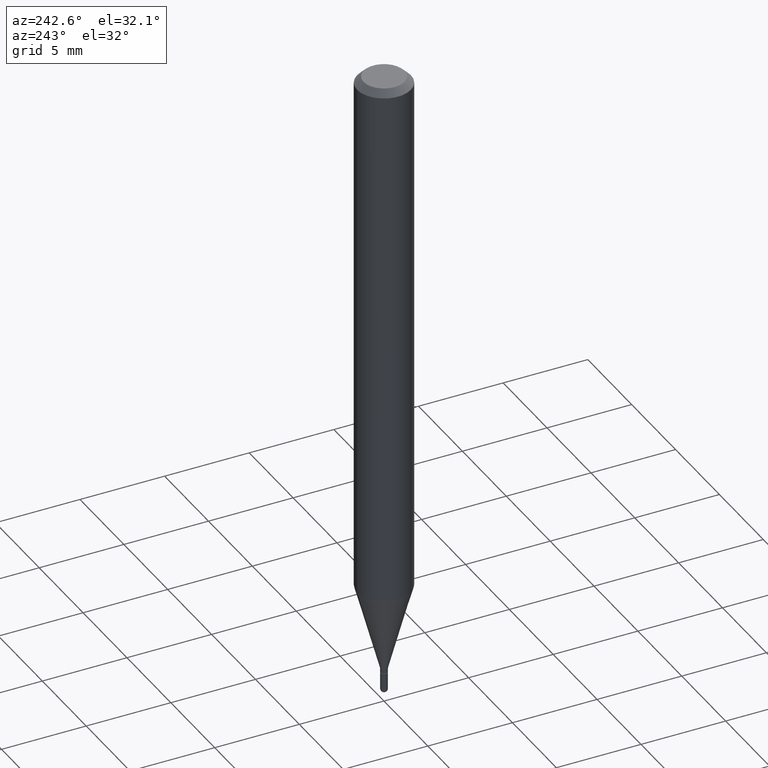
[diagram: clean part render]
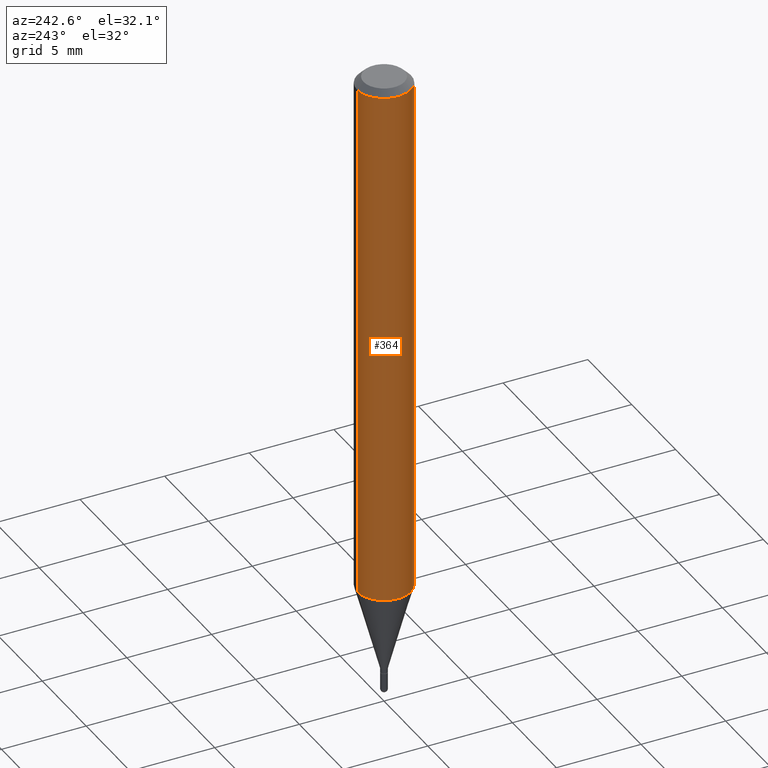
[diagram: same view with one face highlighted and labeled with its STEP entity id]
A machine part, auxiliary view. The second image highlights one B-rep face of the part: STEP entity #364.
In plain terms, the highlighted cylindrical surface (edge-blend (fillet) strip) has radius 1.5875 mm, axis along (-0, 0, 1).
Its self-contained STEP definition (entity closure, byte-faithful):
#8 = VERTEX_POINT ( 'NONE', #371 ) ;
#11 = ORIENTED_EDGE ( 'NONE', *, *, #93, .F. ) ;
#21 = AXIS2_PLACEMENT_3D ( 'NONE', #84, #236, #200 ) ;
#32 = DIRECTION ( 'NONE',  ( -2.445458081085281379E-29, 3.491496697796572887E-15, 1.000000000000000000 ) ) ;
#37 = CARTESIAN_POINT ( 'NONE',  ( 4.440892098500930859E-16, 0.06249999999999995143, -0.01499999999999997863 ) ) ;
#69 = VERTEX_POINT ( 'NONE', #37 ) ;
#78 = CARTESIAN_POINT ( 'NONE',  ( -4.364351673553916201E-16, -0.06250000000000000000, 2.182185436122858054E-16 ) ) ;
#81 = EDGE_CURVE ( 'NONE', #227, #190, #270, .T. ) ;
#84 = CARTESIAN_POINT ( 'NONE',  ( 3.028952280476713504E-29, -4.324579090873010199E-15, -1.238603230987496584 ) ) ;
#93 = EDGE_CURVE ( 'NONE', #69, #190, #378, .T. ) ;
#110 = ORIENTED_EDGE ( 'NONE', *, *, #81, .T. ) ;
#120 = AXIS2_PLACEMENT_3D ( 'NONE', #511, #133, #286 ) ;
#127 = VECTOR ( 'NONE', #214, 39.37007874015748143 ) ;
#133 = DIRECTION ( 'NONE',  ( -2.445458081085281379E-29, 3.491496697796572887E-15, 1.000000000000000000 ) ) ;
#158 = DIRECTION ( 'NONE',  ( -6.982962677686265922E-15, -1.000000000000000000, 3.483106191921935554E-15 ) ) ;
#177 = EDGE_CURVE ( 'NONE', #8, #69, #240, .T. ) ;
#190 = VERTEX_POINT ( 'NONE', #393 ) ;
#199 = EDGE_LOOP ( 'NONE', ( #268, #488, #110, #11 ) ) ;
#200 = DIRECTION ( 'NONE',  ( -6.982962677686265922E-15, -1.000000000000000000, 4.370956789862821150E-15 ) ) ;
#214 = DIRECTION ( 'NONE',  ( -2.445458081085281379E-29, 3.491496697796572887E-15, 1.000000000000000000 ) ) ;
#227 = VERTEX_POINT ( 'NONE', #345 ) ;
#236 = DIRECTION ( 'NONE',  ( -2.445458081085281379E-29, 3.491496697796572887E-15, 1.000000000000000000 ) ) ;
#240 = LINE ( 'NONE', #325, #127 ) ;
#244 = CIRCLE ( 'NONE', #21, 0.06250000000000000000 ) ;
#268 = ORIENTED_EDGE ( 'NONE', *, *, #177, .F. ) ;
#270 = LINE ( 'NONE', #78, #346 ) ;
#272 = FACE_OUTER_BOUND ( 'NONE', #199, .T. ) ;
#278 = AXIS2_PLACEMENT_3D ( 'NONE', #281, #503, #158 ) ;
#281 = CARTESIAN_POINT ( 'NONE',  ( 3.668187121627863477E-31, -5.237245046694775835E-17, -0.01499999999999976179 ) ) ;
#286 = DIRECTION ( 'NONE',  ( -6.982962677686265922E-15, -1.000000000000000000, 3.491496697796572887E-15 ) ) ;
#325 = CARTESIAN_POINT ( 'NONE',  ( 4.440892098500625669E-16, 0.06250000000000000000, -2.182185436122858054E-16 ) ) ;
#345 = CARTESIAN_POINT ( 'NONE',  ( -4.364351673553613969E-16, -0.06250000000000432987, -1.238603230987496362 ) ) ;
#346 = VECTOR ( 'NONE', #32, 39.37007874015748143 ) ;
#364 = ADVANCED_FACE ( 'NONE', ( #272 ), #475, .T. ) ;
#371 = CARTESIAN_POINT ( 'NONE',  ( 4.440892098500926915E-16, 0.06249999999999566319, -1.238603230987496806 ) ) ;
#378 = CIRCLE ( 'NONE', #278, 0.06250000000000000000 ) ;
#393 = CARTESIAN_POINT ( 'NONE',  ( -4.364351673553912750E-16, -0.06250000000000005551, -0.01499999999999954321 ) ) ;
#475 = CYLINDRICAL_SURFACE ( 'NONE', #120, 0.06250000000000000000 ) ;
#488 = ORIENTED_EDGE ( 'NONE', *, *, #509, .T. ) ;
#503 = DIRECTION ( 'NONE',  ( -2.445458081085281379E-29, 3.491496697796572887E-15, 1.000000000000000000 ) ) ;
#509 = EDGE_CURVE ( 'NONE', #8, #227, #244, .T. ) ;
#511 = CARTESIAN_POINT ( 'NONE',  ( 0.000000000000000000, 0.000000000000000000, 0.000000000000000000 ) ) ;